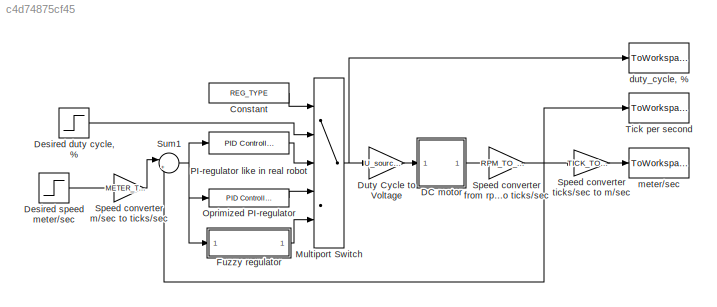
MODEL slx_c4d74875cf45
KIND model
CONFIG AbsTol = auto
CONFIG EnableMultiTasking = off
CONFIG FixedStep = STEP_SIZE
CONFIG MaxStep = auto
CONFIG MinStep = auto
CONFIG RelTol = 1e-3
CONFIG SampleTimeConstraint = Unconstrained
CONFIG Solver = FixedStepAuto
CONFIG SolverName = FixedStepAuto
CONFIG StartTime = 0.0
CONFIG StopTime = SIM_TIME
BLOCK [Constant] Constant
  Value = REG_TYPE
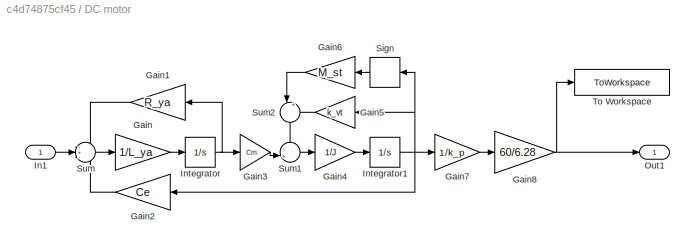
BLOCK [SubSystem] DC motor
  Ports = [1, 1]
  RequestExecContextInheritance = off
BLOCK [Gain] DC motor/Gain
  Gain = 1/L_ya
  OutDataTypeStr = Inherit: Inherit via internal rule
  ParamDataTypeStr = Inherit: Inherit via internal rule
  SaturateOnIntegerOverflow = off
BLOCK [Gain] DC motor/Gain1
  Gain = R_ya
  OutDataTypeStr = Inherit: Inherit via internal rule
  ParamDataTypeStr = Inherit: Inherit via internal rule
  SaturateOnIntegerOverflow = off
BLOCK [Gain] DC motor/Gain2
  Gain = Ce
  OutDataTypeStr = Inherit: Inherit via internal rule
  ParamDataTypeStr = Inherit: Inherit via internal rule
  SaturateOnIntegerOverflow = off
BLOCK [Gain] DC motor/Gain3
  Gain = Cm
  OutDataTypeStr = Inherit: Inherit via internal rule
  ParamDataTypeStr = Inherit: Inherit via internal rule
  SaturateOnIntegerOverflow = off
BLOCK [Gain] DC motor/Gain4
  Gain = 1/J
  OutDataTypeStr = Inherit: Inherit via internal rule
  ParamDataTypeStr = Inherit: Inherit via internal rule
  SaturateOnIntegerOverflow = off
BLOCK [Gain] DC motor/Gain5
  Gain = k_vt
  OutDataTypeStr = Inherit: Inherit via internal rule
  ParamDataTypeStr = Inherit: Inherit via internal rule
  SaturateOnIntegerOverflow = off
BLOCK [Gain] DC motor/Gain6
  Gain = M_st
  OutDataTypeStr = Inherit: Inherit via internal rule
  ParamDataTypeStr = Inherit: Inherit via internal rule
  SaturateOnIntegerOverflow = off
BLOCK [Gain] DC motor/Gain7
  Gain = 1/k_p
  OutDataTypeStr = Inherit: Inherit via internal rule
  ParamDataTypeStr = Inherit: Inherit via internal rule
  SaturateOnIntegerOverflow = off
BLOCK [Gain] DC motor/Gain8
  Gain = 60/6.28
  OutDataTypeStr = Inherit: Inherit via internal rule
  ParamDataTypeStr = Inherit: Inherit via internal rule
  SaturateOnIntegerOverflow = off
BLOCK [Inport] DC motor/In1
  IconDisplay = Port number
BLOCK [Integrator] DC motor/Integrator
  Ports = [1, 1]
BLOCK [Integrator] DC motor/Integrator1
  Ports = [1, 1]
BLOCK [Outport] DC motor/Out1
  IconDisplay = Port number
BLOCK [Signum] DC motor/Sign
BLOCK [Sum] DC motor/Sum
  IconShape = round
  InputSameDT = off
  Inputs = -+-
  OutDataTypeStr = Inherit: Inherit via internal rule
  Ports = [3, 1]
  SaturateOnIntegerOverflow = off
BLOCK [Sum] DC motor/Sum1
  IconShape = round
  InputSameDT = off
  Inputs = -+|
  OutDataTypeStr = Inherit: Inherit via internal rule
  Ports = [2, 1]
  SaturateOnIntegerOverflow = off
BLOCK [Sum] DC motor/Sum2
  IconShape = round
  InputSameDT = off
  Inputs = |++
  OutDataTypeStr = Inherit: Inherit via internal rule
  Ports = [2, 1]
  SaturateOnIntegerOverflow = off
BLOCK [ToWorkspace] DC motor/To Workspace
  FixptAsFi = on
  MaxDataPoints = inf
  Ports = [1]
  SampleTime = -1
  Save2DSignal = 3-D array (concatenate along third dimension)
  SaveFormat = Structure With Time
  VariableName = speed_of_revolutions
BLOCK [Step] Desired duty cycle, % 
  After = 25%*U_rated/U_source
  SampleTime = 0
  Time = 0
BLOCK [Step] Desired speed meter//sec
  After = DESIRED_SPEED
  SampleTime = 0
  Time = 0
BLOCK [Gain] Duty Cycle to Voltage
  Gain = U_source/100
  OutDataTypeStr = Inherit: Inherit via internal rule
  ParamDataTypeStr = Inherit: Inherit via internal rule
  SaturateOnIntegerOverflow = off
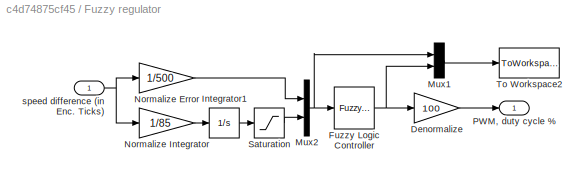
BLOCK [SubSystem] Fuzzy regulator
  Ports = [1, 1]
  RequestExecContextInheritance = off
BLOCK [Gain] Fuzzy regulator/Denormalize
  Gain = 100
  OutDataTypeStr = Inherit: Inherit via internal rule
  ParamDataTypeStr = Inherit: Inherit via internal rule
  SaturateOnIntegerOverflow = off
BLOCK [Reference] Fuzzy regulator/Fuzzy Logic Controller  REF=fuzblock/Fuzzy Logic   (lib defined in mdl_858b3b3e7478)
Controller
  Ports = [1, 1]
  SourceBlock = fuzblock/Fuzzy Logic \nController
  SourceProductBaseCode = FL
  SourceProductName = Fuzzy Logic Toolbox
  SourceType = Fuzzy Inference System
BLOCK [Integrator] Fuzzy regulator/Integrator1
  Ports = [1, 1]
BLOCK [Mux] Fuzzy regulator/Mux1
  DisplayOption = bar
  Inputs = 2
  Ports = [2, 1]
BLOCK [Mux] Fuzzy regulator/Mux2
  DisplayOption = bar
  Inputs = 2
  Ports = [2, 1]
BLOCK [Gain] Fuzzy regulator/Normalize Error
  Gain = 1/500
  OutDataTypeStr = Inherit: Inherit via internal rule
  ParamDataTypeStr = Inherit: Inherit via internal rule
  SaturateOnIntegerOverflow = off
BLOCK [Gain] Fuzzy regulator/Normalize Integrator
  Gain = 1/85
  OutDataTypeStr = Inherit: Inherit via internal rule
  ParamDataTypeStr = Inherit: Inherit via internal rule
  SaturateOnIntegerOverflow = off
BLOCK [Outport] Fuzzy regulator/PWM, duty cycle %
  IconDisplay = Port number
BLOCK [Saturate] Fuzzy regulator/Saturation
  InputPortMap = u0
  LowerLimit = -1
  Ports = [1, 1]
  UpperLimit = 1
BLOCK [ToWorkspace] Fuzzy regulator/To Workspace2
  FixptAsFi = on
  MaxDataPoints = inf
  Ports = [1]
  SampleTime = -1
  Save2DSignal = 3-D array (concatenate along third dimension)
  SaveFormat = Structure With Time
  VariableName = fuzzy_data
BLOCK [Inport] Fuzzy regulator/speed difference (in Enc. Ticks)
  IconDisplay = Port number
BLOCK [MultiPortSwitch] Multiport Switch
  InputSameDT = off
  Inputs = 4
  Ports = [5, 1]
  SaturateOnIntegerOverflow = off
BLOCK [Reference] Oprimized PI-regulator  REF=simulink/Continuous/PID Controller
  Ports = [1, 1]
  SourceBlock = simulink/Continuous/PID Controller
  SourceProductBaseCode = SL
  SourceProductName = Simulink
  SourceType = PID 1dof
BLOCK [Reference] PI-regulator like in real robot  REF=simulink/Continuous/PID Controller
  Ports = [1, 1]
  SourceBlock = simulink/Continuous/PID Controller
  SourceProductBaseCode = SL
  SourceProductName = Simulink
  SourceType = PID 1dof
BLOCK [Gain] Speed converter from rpm to ticks//sec
  Gain = RPM_TO_TPS
  OutDataTypeStr = Inherit: Inherit via internal rule
  ParamDataTypeStr = Inherit: Inherit via internal rule
  SaturateOnIntegerOverflow = off
BLOCK [Gain] Speed converter m//sec to ticks//sec
  Gain = METER_TO_TICK
  OutDataTypeStr = Inherit: Inherit via internal rule
  ParamDataTypeStr = Inherit: Inherit via internal rule
  SaturateOnIntegerOverflow = off
BLOCK [Gain] Speed converter ticks//sec to m//sec
  Gain = TICK_TO_METER
  OutDataTypeStr = Inherit: Inherit via internal rule
  ParamDataTypeStr = Inherit: Inherit via internal rule
  SaturateOnIntegerOverflow = off
BLOCK [Sum] Sum1
  IconShape = round
  InputSameDT = off
  Inputs = |+-
  OutDataTypeStr = Inherit: Inherit via internal rule
  Ports = [2, 1]
  SaturateOnIntegerOverflow = off
BLOCK [ToWorkspace] Tick per second 
  FixptAsFi = on
  MaxDataPoints = inf
  Ports = [1]
  SampleTime = -1
  Save2DSignal = 3-D array (concatenate along third dimension)
  SaveFormat = Structure With Time
  VariableName = encoder
BLOCK [ToWorkspace] duty_cycle, %
  FixptAsFi = on
  MaxDataPoints = inf
  Ports = [1]
  SampleTime = -1
  Save2DSignal = 3-D array (concatenate along third dimension)
  SaveFormat = Structure With Time
  VariableName = voltage
BLOCK [ToWorkspace] meter//sec
  FixptAsFi = on
  MaxDataPoints = inf
  Ports = [1]
  SampleTime = -1
  Save2DSignal = 3-D array (concatenate along third dimension)
  SaveFormat = Structure With Time
  VariableName = speed
LINE Constant:1 -> Multiport Switch:1
LINE DC motor/Gain1:1 -> DC motor/Sum:1
LINE DC motor/Gain2:1 -> DC motor/Sum:3
LINE DC motor/Gain3:1 -> DC motor/Sum1:2
LINE DC motor/Gain4:1 -> DC motor/Integrator1:1
LINE DC motor/Gain5:1 -> DC motor/Sum2:2
LINE DC motor/Gain6:1 -> DC motor/Sum2:1
LINE DC motor/Gain7:1 -> DC motor/Gain8:1
NET DC motor/Gain8:1 -> DC motor/Out1:1, DC motor/To Workspace:1
LINE DC motor/Gain:1 -> DC motor/Integrator:1
LINE DC motor/In1:1 -> DC motor/Sum:2
NET DC motor/Integrator1:1 -> DC motor/Gain2:1, DC motor/Gain5:1, DC motor/Gain7:1, DC motor/Sign:1
NET DC motor/Integrator:1 -> DC motor/Gain1:1, DC motor/Gain3:1
LINE DC motor/Sign:1 -> DC motor/Gain6:1
LINE DC motor/Sum1:1 -> DC motor/Gain4:1
LINE DC motor/Sum2:1 -> DC motor/Sum1:1
LINE DC motor/Sum:1 -> DC motor/Gain:1
LINE DC motor:1 -> Speed converter from rpm to ticks//sec:1
LINE Desired duty cycle, % :1 -> Multiport Switch:2
LINE Desired speed meter//sec:1 -> Speed converter m//sec to ticks//sec:1
LINE Duty Cycle to Voltage:1 -> DC motor:1
LINE Fuzzy regulator/Denormalize:1 -> Fuzzy regulator/PWM, duty cycle %:1
NET Fuzzy regulator/Fuzzy Logic Controller:1 -> Fuzzy regulator/Denormalize:1, Fuzzy regulator/Mux1:2
LINE Fuzzy regulator/Integrator1:1 -> Fuzzy regulator/Saturation:1
LINE Fuzzy regulator/Mux1:1 -> Fuzzy regulator/To Workspace2:1
NET Fuzzy regulator/Mux2:1 -> Fuzzy regulator/Fuzzy Logic Controller:1, Fuzzy regulator/Mux1:1
LINE Fuzzy regulator/Normalize Error:1 -> Fuzzy regulator/Mux2:1
LINE Fuzzy regulator/Normalize Integrator:1 -> Fuzzy regulator/Integrator1:1
LINE Fuzzy regulator/Saturation:1 -> Fuzzy regulator/Mux2:2
NET Fuzzy regulator/speed difference (in Enc. Ticks):1 -> Fuzzy regulator/Normalize Error:1, Fuzzy regulator/Normalize Integrator:1
LINE Fuzzy regulator:1 -> Multiport Switch:5
NET Multiport Switch:1 -> Duty Cycle to Voltage:1, duty_cycle, %:1
LINE Oprimized PI-regulator:1 -> Multiport Switch:4
LINE PI-regulator like in real robot:1 -> Multiport Switch:3
NET Speed converter from rpm to ticks//sec:1 -> Speed converter ticks//sec to m//sec:1, Sum1:2, Tick per second :1
LINE Speed converter m//sec to ticks//sec:1 -> Sum1:1
LINE Speed converter ticks//sec to m//sec:1 -> meter//sec:1
NET Sum1:1 -> Fuzzy regulator:1, Oprimized PI-regulator:1, PI-regulator like in real robot:1
note: NET lines group one-source signal fan-out (src -> all destinations, sorted); 1:1 wires keep LINE
